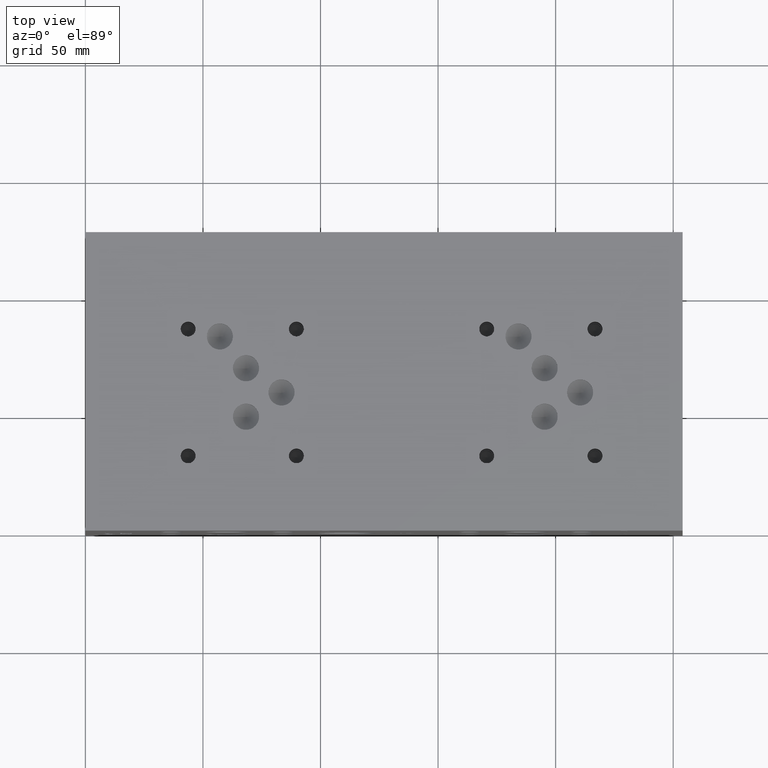
[diagram: clean part render]
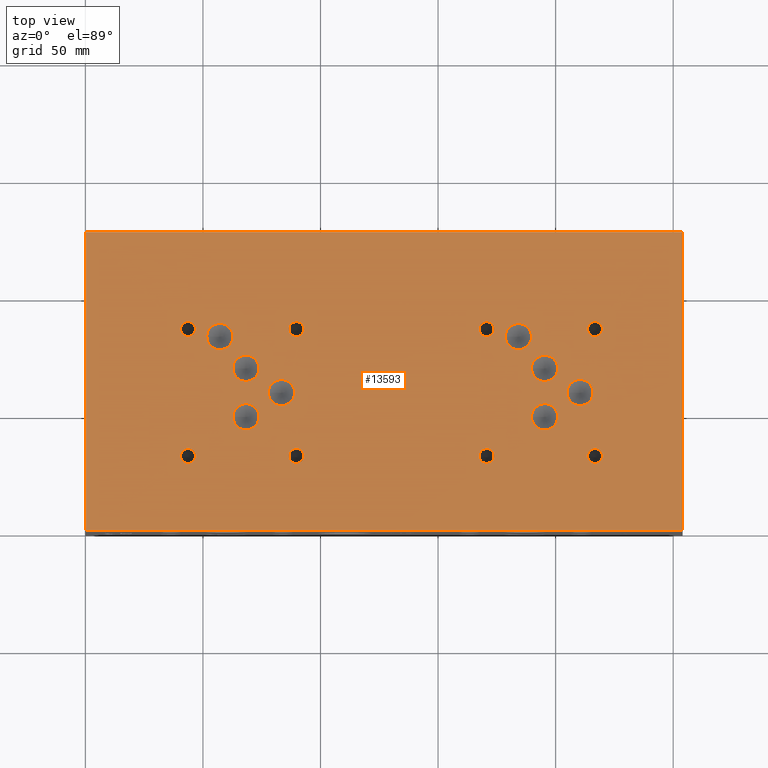
[diagram: same view with one face highlighted and labeled with its STEP entity id]
A machine part, top view. The second image highlights one B-rep face of the part: STEP entity #13593.
In plain terms, the highlighted planar face has unit normal (0, 0, 1).
Its self-contained STEP definition (entity closure, byte-faithful):
#492=CIRCLE('',#14421,5.5626);
#493=CIRCLE('',#14422,5.5626);
#496=CIRCLE('',#14427,5.5626);
#497=CIRCLE('',#14428,5.5626);
#500=CIRCLE('',#14433,5.5626);
#501=CIRCLE('',#14434,5.5626);
#504=CIRCLE('',#14439,5.5626);
#505=CIRCLE('',#14440,5.5626);
#508=CIRCLE('',#14445,5.5626);
#509=CIRCLE('',#14446,5.5626);
#512=CIRCLE('',#14451,5.5626);
#513=CIRCLE('',#14452,5.5626);
#516=CIRCLE('',#14457,5.5626);
#517=CIRCLE('',#14458,5.5626);
#520=CIRCLE('',#14463,5.5626);
#521=CIRCLE('',#14464,5.5626);
#527=CIRCLE('',#14473,3.175);
#528=CIRCLE('',#14474,3.175);
#534=CIRCLE('',#14484,3.175);
#535=CIRCLE('',#14485,3.175);
#541=CIRCLE('',#14495,3.175);
#542=CIRCLE('',#14496,3.175);
#548=CIRCLE('',#14506,3.175);
#549=CIRCLE('',#14507,3.175);
#555=CIRCLE('',#14517,3.175);
#556=CIRCLE('',#14518,3.175);
#562=CIRCLE('',#14528,3.175);
#563=CIRCLE('',#14529,3.175);
#569=CIRCLE('',#14539,3.175);
#570=CIRCLE('',#14540,3.175);
#576=CIRCLE('',#14550,3.175);
#577=CIRCLE('',#14551,3.175);
#714=FACE_BOUND('',#2655,.T.);
#715=FACE_BOUND('',#2656,.T.);
#716=FACE_BOUND('',#2657,.T.);
#717=FACE_BOUND('',#2658,.T.);
#718=FACE_BOUND('',#2659,.T.);
#719=FACE_BOUND('',#2660,.T.);
#720=FACE_BOUND('',#2661,.T.);
#721=FACE_BOUND('',#2662,.T.);
#722=FACE_BOUND('',#2663,.T.);
#723=FACE_BOUND('',#2664,.T.);
#724=FACE_BOUND('',#2665,.T.);
#725=FACE_BOUND('',#2666,.T.);
#726=FACE_BOUND('',#2667,.T.);
#727=FACE_BOUND('',#2668,.T.);
#728=FACE_BOUND('',#2669,.T.);
#729=FACE_BOUND('',#2670,.T.);
#1114=PLANE('',#14557);
#1816=FACE_OUTER_BOUND('',#2654,.T.);
#2654=EDGE_LOOP('',(#12248,#12249,#12250,#12251));
#2655=EDGE_LOOP('',(#12252,#12253));
#2656=EDGE_LOOP('',(#12254,#12255));
#2657=EDGE_LOOP('',(#12256,#12257));
#2658=EDGE_LOOP('',(#12258,#12259));
#2659=EDGE_LOOP('',(#12260,#12261));
#2660=EDGE_LOOP('',(#12262,#12263));
#2661=EDGE_LOOP('',(#12264,#12265));
#2662=EDGE_LOOP('',(#12266,#12267));
#2663=EDGE_LOOP('',(#12268,#12269));
#2664=EDGE_LOOP('',(#12270,#12271));
#2665=EDGE_LOOP('',(#12272,#12273));
#2666=EDGE_LOOP('',(#12274,#12275));
#2667=EDGE_LOOP('',(#12276,#12277));
#2668=EDGE_LOOP('',(#12278,#12279));
#2669=EDGE_LOOP('',(#12280,#12281));
#2670=EDGE_LOOP('',(#12282,#12283));
#2706=LINE('',#17865,#3901);
#2766=LINE('',#18172,#3961);
#3092=LINE('',#20190,#4287);
#3866=LINE('',#23409,#5061);
#3901=VECTOR('',#14615,10.);
#3961=VECTOR('',#14761,10.);
#4287=VECTOR('',#15323,10.);
#5061=VECTOR('',#17647,10.);
#5382=VERTEX_POINT('',#17862);
#5383=VERTEX_POINT('',#17864);
#5458=VERTEX_POINT('',#18169);
#5459=VERTEX_POINT('',#18171);
#6571=VERTEX_POINT('',#23134);
#6572=VERTEX_POINT('',#23135);
#6576=VERTEX_POINT('',#23147);
#6577=VERTEX_POINT('',#23148);
#6581=VERTEX_POINT('',#23160);
#6582=VERTEX_POINT('',#23161);
#6586=VERTEX_POINT('',#23173);
#6587=VERTEX_POINT('',#23174);
#6591=VERTEX_POINT('',#23186);
#6592=VERTEX_POINT('',#23187);
#6596=VERTEX_POINT('',#23199);
#6597=VERTEX_POINT('',#23200);
#6601=VERTEX_POINT('',#23212);
#6602=VERTEX_POINT('',#23213);
#6606=VERTEX_POINT('',#23225);
#6607=VERTEX_POINT('',#23226);
#6614=VERTEX_POINT('',#23245);
#6615=VERTEX_POINT('',#23246);
#6622=VERTEX_POINT('',#23267);
#6623=VERTEX_POINT('',#23268);
#6630=VERTEX_POINT('',#23289);
#6631=VERTEX_POINT('',#23290);
#6638=VERTEX_POINT('',#23311);
#6639=VERTEX_POINT('',#23312);
#6646=VERTEX_POINT('',#23333);
#6647=VERTEX_POINT('',#23334);
#6654=VERTEX_POINT('',#23355);
#6655=VERTEX_POINT('',#23356);
#6662=VERTEX_POINT('',#23377);
#6663=VERTEX_POINT('',#23378);
#6670=VERTEX_POINT('',#23399);
#6671=VERTEX_POINT('',#23400);
#6722=EDGE_CURVE('',#5383,#5382,#2706,.T.);
#6822=EDGE_CURVE('',#5459,#5458,#2766,.T.);
#7326=EDGE_CURVE('',#5458,#5383,#3092,.T.);
#8417=EDGE_CURVE('',#6571,#6572,#492,.T.);
#8418=EDGE_CURVE('',#6572,#6571,#493,.T.);
#8423=EDGE_CURVE('',#6576,#6577,#496,.T.);
#8424=EDGE_CURVE('',#6577,#6576,#497,.T.);
#8429=EDGE_CURVE('',#6581,#6582,#500,.T.);
#8430=EDGE_CURVE('',#6582,#6581,#501,.T.);
#8435=EDGE_CURVE('',#6586,#6587,#504,.T.);
#8436=EDGE_CURVE('',#6587,#6586,#505,.T.);
#8441=EDGE_CURVE('',#6591,#6592,#508,.T.);
#8442=EDGE_CURVE('',#6592,#6591,#509,.T.);
#8447=EDGE_CURVE('',#6596,#6597,#512,.T.);
#8448=EDGE_CURVE('',#6597,#6596,#513,.T.);
#8453=EDGE_CURVE('',#6601,#6602,#516,.T.);
#8454=EDGE_CURVE('',#6602,#6601,#517,.T.);
#8459=EDGE_CURVE('',#6606,#6607,#520,.T.);
#8460=EDGE_CURVE('',#6607,#6606,#521,.T.);
#8468=EDGE_CURVE('',#6614,#6615,#527,.T.);
#8469=EDGE_CURVE('',#6615,#6614,#528,.T.);
#8478=EDGE_CURVE('',#6622,#6623,#534,.T.);
#8479=EDGE_CURVE('',#6623,#6622,#535,.T.);
#8488=EDGE_CURVE('',#6630,#6631,#541,.T.);
#8489=EDGE_CURVE('',#6631,#6630,#542,.T.);
#8498=EDGE_CURVE('',#6638,#6639,#548,.T.);
#8499=EDGE_CURVE('',#6639,#6638,#549,.T.);
#8508=EDGE_CURVE('',#6646,#6647,#555,.T.);
#8509=EDGE_CURVE('',#6647,#6646,#556,.T.);
#8518=EDGE_CURVE('',#6654,#6655,#562,.T.);
#8519=EDGE_CURVE('',#6655,#6654,#563,.T.);
#8528=EDGE_CURVE('',#6662,#6663,#569,.T.);
#8529=EDGE_CURVE('',#6663,#6662,#570,.T.);
#8538=EDGE_CURVE('',#6670,#6671,#576,.T.);
#8539=EDGE_CURVE('',#6671,#6670,#577,.T.);
#8543=EDGE_CURVE('',#5382,#5459,#3866,.T.);
#12248=ORIENTED_EDGE('',*,*,#7326,.T.);
#12249=ORIENTED_EDGE('',*,*,#6722,.T.);
#12250=ORIENTED_EDGE('',*,*,#8543,.T.);
#12251=ORIENTED_EDGE('',*,*,#6822,.T.);
#12252=ORIENTED_EDGE('',*,*,#8417,.T.);
#12253=ORIENTED_EDGE('',*,*,#8418,.T.);
#12254=ORIENTED_EDGE('',*,*,#8423,.T.);
#12255=ORIENTED_EDGE('',*,*,#8424,.T.);
#12256=ORIENTED_EDGE('',*,*,#8429,.T.);
#12257=ORIENTED_EDGE('',*,*,#8430,.T.);
#12258=ORIENTED_EDGE('',*,*,#8435,.T.);
#12259=ORIENTED_EDGE('',*,*,#8436,.T.);
#12260=ORIENTED_EDGE('',*,*,#8441,.T.);
#12261=ORIENTED_EDGE('',*,*,#8442,.T.);
#12262=ORIENTED_EDGE('',*,*,#8447,.T.);
#12263=ORIENTED_EDGE('',*,*,#8448,.T.);
#12264=ORIENTED_EDGE('',*,*,#8453,.T.);
#12265=ORIENTED_EDGE('',*,*,#8454,.T.);
#12266=ORIENTED_EDGE('',*,*,#8459,.T.);
#12267=ORIENTED_EDGE('',*,*,#8460,.T.);
#12268=ORIENTED_EDGE('',*,*,#8468,.T.);
#12269=ORIENTED_EDGE('',*,*,#8469,.T.);
#12270=ORIENTED_EDGE('',*,*,#8478,.T.);
#12271=ORIENTED_EDGE('',*,*,#8479,.T.);
#12272=ORIENTED_EDGE('',*,*,#8488,.T.);
#12273=ORIENTED_EDGE('',*,*,#8489,.T.);
#12274=ORIENTED_EDGE('',*,*,#8498,.T.);
#12275=ORIENTED_EDGE('',*,*,#8499,.T.);
#12276=ORIENTED_EDGE('',*,*,#8508,.T.);
#12277=ORIENTED_EDGE('',*,*,#8509,.T.);
#12278=ORIENTED_EDGE('',*,*,#8518,.T.);
#12279=ORIENTED_EDGE('',*,*,#8519,.T.);
#12280=ORIENTED_EDGE('',*,*,#8528,.T.);
#12281=ORIENTED_EDGE('',*,*,#8529,.T.);
#12282=ORIENTED_EDGE('',*,*,#8538,.T.);
#12283=ORIENTED_EDGE('',*,*,#8539,.T.);
#13593=ADVANCED_FACE('',(#1816,#714,#715,#716,#717,#718,#719,#720,#721,
#722,#723,#724,#725,#726,#727,#728,#729),#1114,.T.);
#14421=AXIS2_PLACEMENT_3D('',#23136,#17339,#17340);
#14422=AXIS2_PLACEMENT_3D('',#23137,#17341,#17342);
#14427=AXIS2_PLACEMENT_3D('',#23149,#17353,#17354);
#14428=AXIS2_PLACEMENT_3D('',#23150,#17355,#17356);
#14433=AXIS2_PLACEMENT_3D('',#23162,#17367,#17368);
#14434=AXIS2_PLACEMENT_3D('',#23163,#17369,#17370);
#14439=AXIS2_PLACEMENT_3D('',#23175,#17381,#17382);
#14440=AXIS2_PLACEMENT_3D('',#23176,#17383,#17384);
#14445=AXIS2_PLACEMENT_3D('',#23188,#17395,#17396);
#14446=AXIS2_PLACEMENT_3D('',#23189,#17397,#17398);
#14451=AXIS2_PLACEMENT_3D('',#23201,#17409,#17410);
#14452=AXIS2_PLACEMENT_3D('',#23202,#17411,#17412);
#14457=AXIS2_PLACEMENT_3D('',#23214,#17423,#17424);
#14458=AXIS2_PLACEMENT_3D('',#23215,#17425,#17426);
#14463=AXIS2_PLACEMENT_3D('',#23227,#17437,#17438);
#14464=AXIS2_PLACEMENT_3D('',#23228,#17439,#17440);
#14473=AXIS2_PLACEMENT_3D('',#23247,#17459,#17460);
#14474=AXIS2_PLACEMENT_3D('',#23248,#17461,#17462);
#14484=AXIS2_PLACEMENT_3D('',#23269,#17484,#17485);
#14485=AXIS2_PLACEMENT_3D('',#23270,#17486,#17487);
#14495=AXIS2_PLACEMENT_3D('',#23291,#17509,#17510);
#14496=AXIS2_PLACEMENT_3D('',#23292,#17511,#17512);
#14506=AXIS2_PLACEMENT_3D('',#23313,#17534,#17535);
#14507=AXIS2_PLACEMENT_3D('',#23314,#17536,#17537);
#14517=AXIS2_PLACEMENT_3D('',#23335,#17559,#17560);
#14518=AXIS2_PLACEMENT_3D('',#23336,#17561,#17562);
#14528=AXIS2_PLACEMENT_3D('',#23357,#17584,#17585);
#14529=AXIS2_PLACEMENT_3D('',#23358,#17586,#17587);
#14539=AXIS2_PLACEMENT_3D('',#23379,#17609,#17610);
#14540=AXIS2_PLACEMENT_3D('',#23380,#17611,#17612);
#14550=AXIS2_PLACEMENT_3D('',#23401,#17634,#17635);
#14551=AXIS2_PLACEMENT_3D('',#23402,#17636,#17637);
#14557=AXIS2_PLACEMENT_3D('',#23412,#17652,#17653);
#14615=DIRECTION('',(0.,1.,0.));
#14761=DIRECTION('',(0.,-1.,0.));
#15323=DIRECTION('',(1.,0.,0.));
#17339=DIRECTION('center_axis',(0.,0.,-1.));
#17340=DIRECTION('ref_axis',(1.,0.,0.));
#17341=DIRECTION('center_axis',(0.,0.,-1.));
#17342=DIRECTION('ref_axis',(1.,0.,0.));
#17353=DIRECTION('center_axis',(0.,0.,-1.));
#17354=DIRECTION('ref_axis',(1.,0.,0.));
#17355=DIRECTION('center_axis',(0.,0.,-1.));
#17356=DIRECTION('ref_axis',(1.,0.,0.));
#17367=DIRECTION('center_axis',(0.,0.,-1.));
#17368=DIRECTION('ref_axis',(1.,0.,0.));
#17369=DIRECTION('center_axis',(0.,0.,-1.));
#17370=DIRECTION('ref_axis',(1.,0.,0.));
#17381=DIRECTION('center_axis',(0.,0.,-1.));
#17382=DIRECTION('ref_axis',(1.,0.,0.));
#17383=DIRECTION('center_axis',(0.,0.,-1.));
#17384=DIRECTION('ref_axis',(1.,0.,0.));
#17395=DIRECTION('center_axis',(0.,0.,-1.));
#17396=DIRECTION('ref_axis',(1.,0.,0.));
#17397=DIRECTION('center_axis',(0.,0.,-1.));
#17398=DIRECTION('ref_axis',(1.,0.,0.));
#17409=DIRECTION('center_axis',(0.,0.,-1.));
#17410=DIRECTION('ref_axis',(1.,0.,0.));
#17411=DIRECTION('center_axis',(0.,0.,-1.));
#17412=DIRECTION('ref_axis',(1.,0.,0.));
#17423=DIRECTION('center_axis',(0.,0.,-1.));
#17424=DIRECTION('ref_axis',(1.,0.,0.));
#17425=DIRECTION('center_axis',(0.,0.,-1.));
#17426=DIRECTION('ref_axis',(1.,0.,0.));
#17437=DIRECTION('center_axis',(0.,0.,-1.));
#17438=DIRECTION('ref_axis',(1.,0.,0.));
#17439=DIRECTION('center_axis',(0.,0.,-1.));
#17440=DIRECTION('ref_axis',(1.,0.,0.));
#17459=DIRECTION('center_axis',(0.,0.,-1.));
#17460=DIRECTION('ref_axis',(1.,0.,0.));
#17461=DIRECTION('center_axis',(0.,0.,-1.));
#17462=DIRECTION('ref_axis',(1.,0.,0.));
#17484=DIRECTION('center_axis',(0.,0.,-1.));
#17485=DIRECTION('ref_axis',(1.,0.,0.));
#17486=DIRECTION('center_axis',(0.,0.,-1.));
#17487=DIRECTION('ref_axis',(1.,0.,0.));
#17509=DIRECTION('center_axis',(0.,0.,-1.));
#17510=DIRECTION('ref_axis',(1.,0.,0.));
#17511=DIRECTION('center_axis',(0.,0.,-1.));
#17512=DIRECTION('ref_axis',(1.,0.,0.));
#17534=DIRECTION('center_axis',(0.,0.,-1.));
#17535=DIRECTION('ref_axis',(1.,0.,0.));
#17536=DIRECTION('center_axis',(0.,0.,-1.));
#17537=DIRECTION('ref_axis',(1.,0.,0.));
#17559=DIRECTION('center_axis',(0.,0.,-1.));
#17560=DIRECTION('ref_axis',(1.,0.,0.));
#17561=DIRECTION('center_axis',(0.,0.,-1.));
#17562=DIRECTION('ref_axis',(1.,0.,0.));
#17584=DIRECTION('center_axis',(0.,0.,-1.));
#17585=DIRECTION('ref_axis',(1.,0.,0.));
#17586=DIRECTION('center_axis',(0.,0.,-1.));
#17587=DIRECTION('ref_axis',(1.,0.,0.));
#17609=DIRECTION('center_axis',(0.,0.,-1.));
#17610=DIRECTION('ref_axis',(1.,0.,0.));
#17611=DIRECTION('center_axis',(0.,0.,-1.));
#17612=DIRECTION('ref_axis',(1.,0.,0.));
#17634=DIRECTION('center_axis',(0.,0.,-1.));
#17635=DIRECTION('ref_axis',(1.,0.,0.));
#17636=DIRECTION('center_axis',(0.,0.,-1.));
#17637=DIRECTION('ref_axis',(1.,0.,0.));
#17647=DIRECTION('',(-1.,0.,0.));
#17652=DIRECTION('center_axis',(0.,0.,1.));
#17653=DIRECTION('ref_axis',(1.,0.,0.));
#17862=CARTESIAN_POINT('',(254.,127.,127.));
#17864=CARTESIAN_POINT('',(254.,0.,127.));
#17865=CARTESIAN_POINT('',(254.,0.,127.));
#18169=CARTESIAN_POINT('',(0.,0.,127.));
#18171=CARTESIAN_POINT('',(0.,127.,127.));
#18172=CARTESIAN_POINT('',(0.,127.,127.));
#20190=CARTESIAN_POINT('',(0.,0.,127.));
#23134=CARTESIAN_POINT('',(200.8632,69.0626,127.));
#23135=CARTESIAN_POINT('',(189.738,69.0626,127.));
#23136=CARTESIAN_POINT('Origin',(195.3006,69.0626,127.));
#23137=CARTESIAN_POINT('Origin',(195.3006,69.0626,127.));
#23147=CARTESIAN_POINT('',(215.9508,58.7502,127.));
#23148=CARTESIAN_POINT('',(204.8256,58.7502,127.));
#23149=CARTESIAN_POINT('Origin',(210.3882,58.7502,127.));
#23150=CARTESIAN_POINT('Origin',(210.3882,58.7502,127.));
#23160=CARTESIAN_POINT('',(73.8505,69.06768,127.));
#23161=CARTESIAN_POINT('',(62.7253,69.06768,127.));
#23162=CARTESIAN_POINT('Origin',(68.2879,69.06768,127.));
#23163=CARTESIAN_POINT('Origin',(68.2879,69.06768,127.));
#23173=CARTESIAN_POINT('',(88.9508,58.7502,127.));
#23174=CARTESIAN_POINT('',(77.8256,58.7502,127.));
#23175=CARTESIAN_POINT('Origin',(83.3882,58.7502,127.));
#23176=CARTESIAN_POINT('Origin',(83.3882,58.7502,127.));
#23186=CARTESIAN_POINT('',(62.738,82.5754,127.));
#23187=CARTESIAN_POINT('',(51.6128,82.5754,127.));
#23188=CARTESIAN_POINT('Origin',(57.1754,82.5754,127.));
#23189=CARTESIAN_POINT('Origin',(57.1754,82.5754,127.));
#23199=CARTESIAN_POINT('',(73.85558,48.43272,127.));
#23200=CARTESIAN_POINT('',(62.73038,48.43272,127.));
#23201=CARTESIAN_POINT('Origin',(68.29298,48.43272,127.));
#23202=CARTESIAN_POINT('Origin',(68.29298,48.43272,127.));
#23212=CARTESIAN_POINT('',(189.738,82.5754,127.));
#23213=CARTESIAN_POINT('',(178.6128,82.5754,127.));
#23214=CARTESIAN_POINT('Origin',(184.1754,82.5754,127.));
#23215=CARTESIAN_POINT('Origin',(184.1754,82.5754,127.));
#23225=CARTESIAN_POINT('',(200.8632,48.4378,127.));
#23226=CARTESIAN_POINT('',(189.738,48.4378,127.));
#23227=CARTESIAN_POINT('Origin',(195.3006,48.4378,127.));
#23228=CARTESIAN_POINT('Origin',(195.3006,48.4378,127.));
#23245=CARTESIAN_POINT('',(219.8878,31.7754,127.));
#23246=CARTESIAN_POINT('',(213.5378,31.7754,127.));
#23247=CARTESIAN_POINT('Origin',(216.7128,31.7754,127.));
#23248=CARTESIAN_POINT('Origin',(216.7128,31.7754,127.));
#23267=CARTESIAN_POINT('',(173.8376,85.7504,127.));
#23268=CARTESIAN_POINT('',(167.4876,85.7504,127.));
#23269=CARTESIAN_POINT('Origin',(170.6626,85.7504,127.));
#23270=CARTESIAN_POINT('Origin',(170.6626,85.7504,127.));
#23289=CARTESIAN_POINT('',(92.8878,31.7881,127.));
#23290=CARTESIAN_POINT('',(86.5378,31.7881,127.));
#23291=CARTESIAN_POINT('Origin',(89.7128,31.7881,127.));
#23292=CARTESIAN_POINT('Origin',(89.7128,31.7881,127.));
#23311=CARTESIAN_POINT('',(46.8376,85.7504,127.));
#23312=CARTESIAN_POINT('',(40.4876,85.7504,127.));
#23313=CARTESIAN_POINT('Origin',(43.6626,85.7504,127.));
#23314=CARTESIAN_POINT('Origin',(43.6626,85.7504,127.));
#23333=CARTESIAN_POINT('',(92.8878,85.7504,127.));
#23334=CARTESIAN_POINT('',(86.5378,85.7504,127.));
#23335=CARTESIAN_POINT('Origin',(89.7128,85.7504,127.));
#23336=CARTESIAN_POINT('Origin',(89.7128,85.7504,127.));
#23355=CARTESIAN_POINT('',(46.8376,31.7754,127.));
#23356=CARTESIAN_POINT('',(40.4876,31.7754,127.));
#23357=CARTESIAN_POINT('Origin',(43.6626,31.7754,127.));
#23358=CARTESIAN_POINT('Origin',(43.6626,31.7754,127.));
#23377=CARTESIAN_POINT('',(219.8878,85.7504,127.));
#23378=CARTESIAN_POINT('',(213.5378,85.7504,127.));
#23379=CARTESIAN_POINT('Origin',(216.7128,85.7504,127.));
#23380=CARTESIAN_POINT('Origin',(216.7128,85.7504,127.));
#23399=CARTESIAN_POINT('',(173.8376,31.7754,127.));
#23400=CARTESIAN_POINT('',(167.4876,31.7754,127.));
#23401=CARTESIAN_POINT('Origin',(170.6626,31.7754,127.));
#23402=CARTESIAN_POINT('Origin',(170.6626,31.7754,127.));
#23409=CARTESIAN_POINT('',(254.,127.,127.));
#23412=CARTESIAN_POINT('Origin',(127.,63.5,127.));